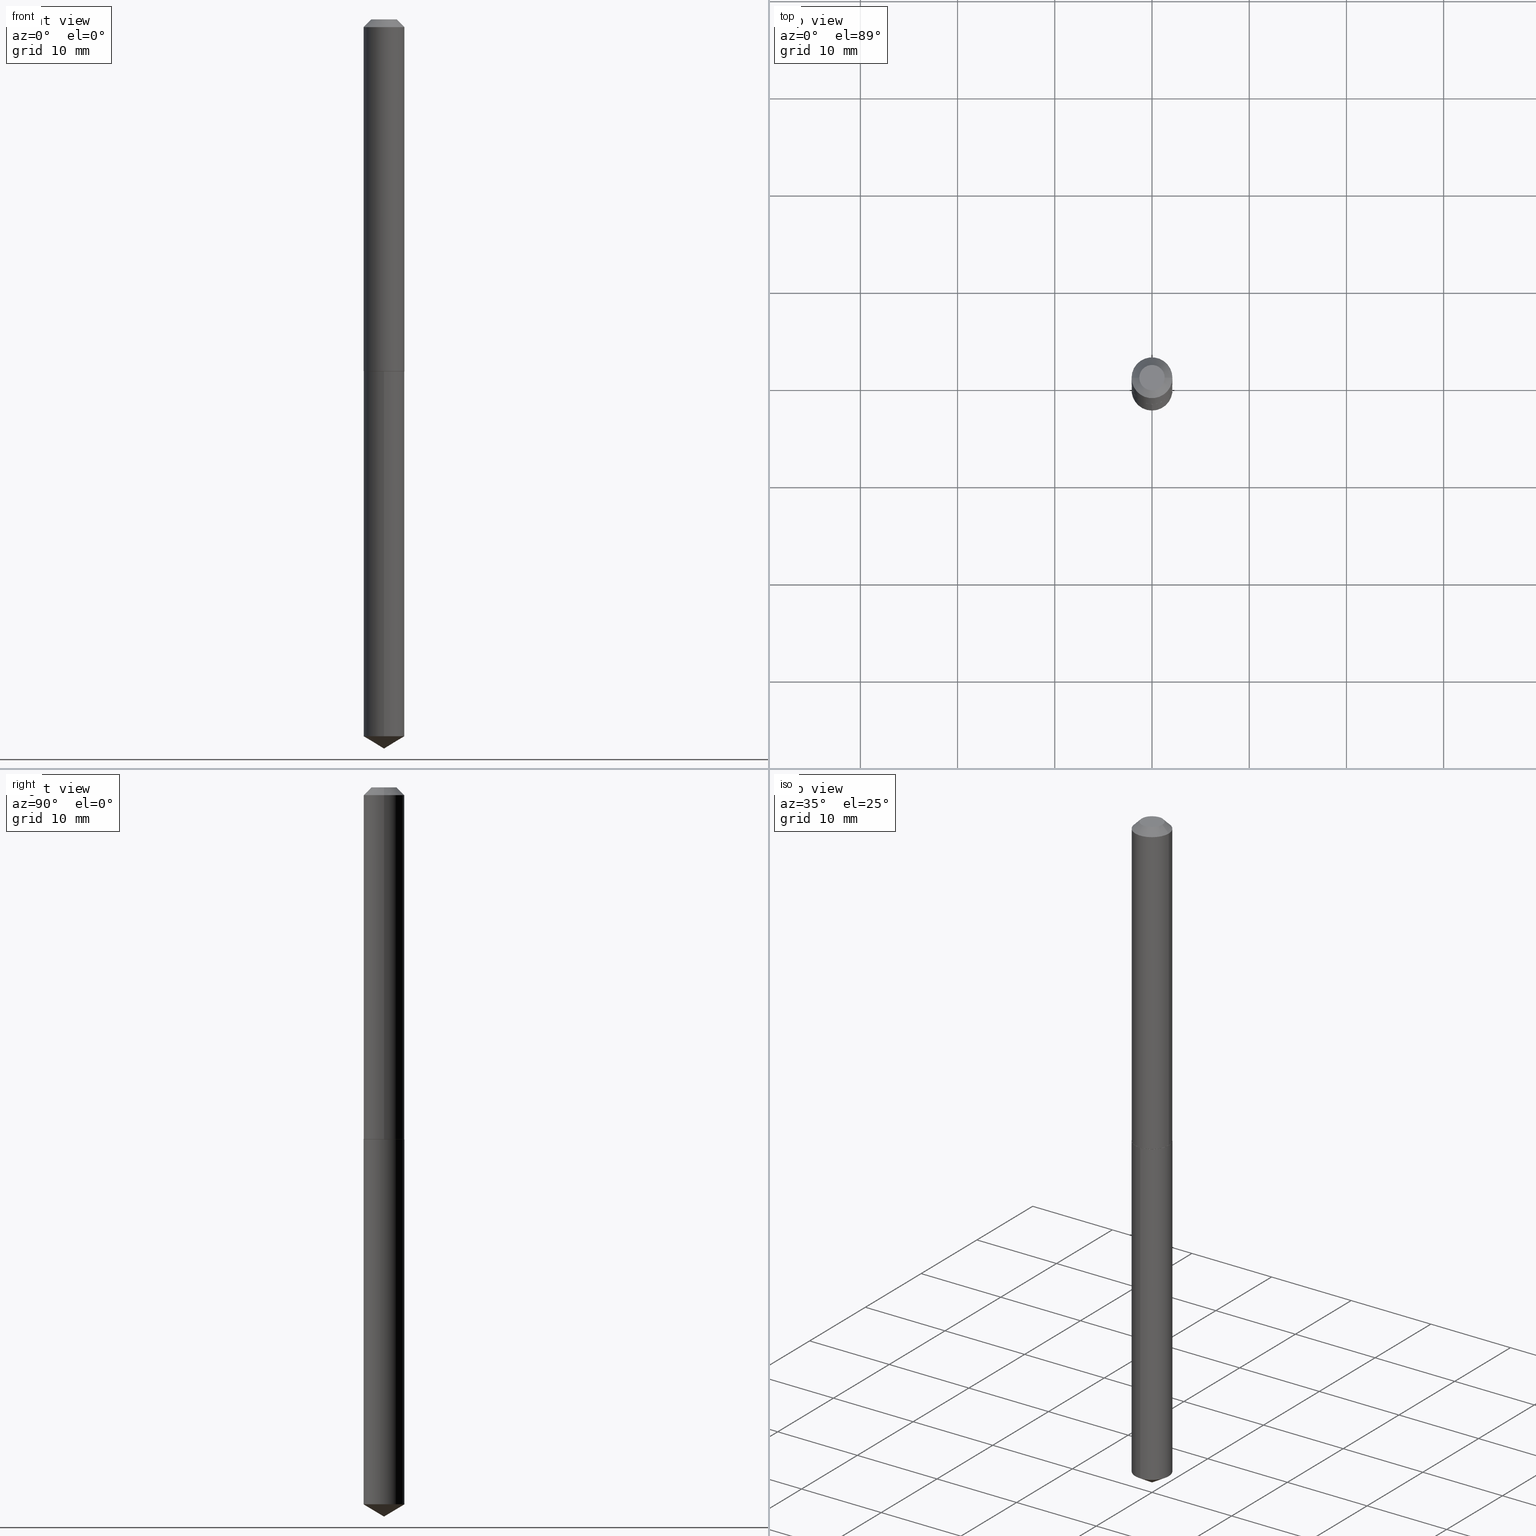
[diagram: canonical four-view strip — front | top / right | iso, engineering-drawing reading convention]
A machine part, canonical four-view strip (front | top / right | iso — engineering-drawing reading convention). The complete STEP part file that produces these views, byte-faithful:
ISO-10303-21;
HEADER;
FILE_DESCRIPTION (( 'STEP AP203' ),
    '1' );
FILE_NAME ('61077.STEP',
    '2024-04-23T03:20:12',
    ( '' ),
    ( '' ),
    'SwSTEP 2.0',
    'SolidWorks 2023',
    '' );
FILE_SCHEMA (( 'CONFIG_CONTROL_DESIGN' ));
ENDSEC;

DATA;
#1 = ADVANCED_BREP_SHAPE_REPRESENTATION ( '61077', ( #221, #100, #207 ), #72 ) ;
#2 = CARTESIAN_POINT ( 'NONE',  ( 3.484303955052581857E-29, -4.974662611583712996E-15, -1.424799999999999844 ) ) ;
#3 = AXIS2_PLACEMENT_3D ( 'NONE', #234, #151, #265 ) ;
#4 = APPROVAL ( #343, 'UNSPECIFIED' ) ;
#5 = DIRECTION ( 'NONE',  ( -2.445468806185136597E-29, 3.491481338843145583E-15, 1.000000000000000000 ) ) ;
#6 = DIRECTION ( 'NONE',  ( -2.445468806185136597E-29, 3.491481338843145583E-15, 1.000000000000000000 ) ) ;
#7 = LOCAL_TIME ( 23, 20, 12.00000000000000000, #81 ) ;
#8 = VERTEX_POINT ( 'NONE', #24 ) ;
#9 = EDGE_CURVE ( 'NONE', #344, #64, #22, .T. ) ;
#10 = FACE_OUTER_BOUND ( 'NONE', #188, .T. ) ;
#11 = CARTESIAN_POINT ( 'NONE',  ( 7.642090019328600035E-31, -1.091087918388489897E-16, -0.03125000000000020123 ) ) ;
#12 = ORIENTED_EDGE ( 'NONE', *, *, #332, .T. ) ;
#13 = APPROVAL_DATE_TIME ( #139, #124 ) ;
#14 = AXIS2_PLACEMENT_3D ( 'NONE', #227, #82, #199 ) ;
#15 = ORIENTED_EDGE ( 'NONE', *, *, #161, .T. ) ;
#16 = APPROVAL_PERSON_ORGANIZATION ( #46, #257, #107 ) ;
#17 = UNCERTAINTY_MEASURE_WITH_UNIT (LENGTH_MEASURE( 1.000000000000000082E-05 ), #333, 'distance_accuracy_value', 'NONE');
#18 = ADVANCED_FACE ( 'NONE', ( #84 ), #385, .T. ) ;
#19 = DATE_AND_TIME ( #49, #331 ) ;
#20 = LINE ( 'NONE', #348, #126 ) ;
#21 = PERSON_AND_ORGANIZATION ( #297, #127 ) ;
#22 = LINE ( 'NONE', #174, #325 ) ;
#23 = COORDINATED_UNIVERSAL_TIME_OFFSET ( 5, 0, .BEHIND. ) ;
#24 = CARTESIAN_POINT ( 'NONE',  ( 0.08220000000000014795, -5.550407884358946961E-15, -1.425299999999999789 ) ) ;
#25 = EDGE_CURVE ( 'NONE', #134, #344, #135, .T. ) ;
#26 = APPROVAL_STATUS ( 'not_yet_approved' ) ;
#27 = CARTESIAN_POINT ( 'NONE',  ( 3.484303955052581857E-29, -4.974662611583712996E-15, -1.424799999999999844 ) ) ;
#28 = FACE_OUTER_BOUND ( 'NONE', #157, .T. ) ;
#29 = AXIS2_PLACEMENT_3D ( 'NONE', #315, #50, #287 ) ;
#30 = ADVANCED_FACE ( 'NONE', ( #143 ), #262, .T. ) ;
#31 = LINE ( 'NONE', #149, #148 ) ;
#32 = DIMENSIONAL_EXPONENTS ( 1.000000000000000000, 0.000000000000000000, 0.000000000000000000, 0.000000000000000000, 0.000000000000000000, 0.000000000000000000, 0.000000000000000000 ) ;
#33 = DIRECTION ( 'NONE',  ( -1.000000000000000000, 6.982962677686267499E-15, 0.000000000000000000 ) ) ;
#34 = FACE_OUTER_BOUND ( 'NONE', #310, .T. ) ;
#35 = DIRECTION ( 'NONE',  ( -2.445501888859644537E-29, 3.491433962570301404E-15, 1.000000000000000000 ) ) ;
#36 = DIRECTION ( 'NONE',  ( -2.445468806185136597E-29, 3.491481338843145583E-15, 1.000000000000000000 ) ) ;
#37 = ORIENTED_EDGE ( 'NONE', *, *, #228, .T. ) ;
#38 = DIRECTION ( 'NONE',  ( -2.445468806185136597E-29, 3.491481338843145583E-15, 1.000000000000000000 ) ) ;
#39 = ORIENTED_EDGE ( 'NONE', *, *, #196, .T. ) ;
#40 = AXIS2_PLACEMENT_3D ( 'NONE', #229, #231, #284 ) ;
#41 = DIRECTION ( 'NONE',  ( -2.445468806185136597E-29, 3.491481338843145583E-15, 1.000000000000000000 ) ) ;
#42 = ORIENTED_EDGE ( 'NONE', *, *, #313, .F. ) ;
#43 = CARTESIAN_POINT ( 'NONE',  ( 0.08270000000000014839, -5.552153625028367676E-15, -1.424799999999999844 ) ) ;
#44 = EDGE_LOOP ( 'NONE', ( #146, #193, #270, #370 ) ) ;
#45 = ADVANCED_FACE ( 'NONE', ( #353 ), #354, .T. ) ;
#46 = PERSON_AND_ORGANIZATION ( #297, #127 ) ;
#47 = CIRCLE ( 'NONE', #78, 0.08269999999999999574 ) ;
#48 = CARTESIAN_POINT ( 'NONE',  ( -2.994835545909332737E-48, 4.275831445896982869E-34, 1.224646799147355792E-19 ) ) ;
#49 = CALENDAR_DATE ( 2024, 22, 4 ) ;
#50 = DIRECTION ( 'NONE',  ( -2.445501888859644537E-29, 3.491433962570301404E-15, 1.000000000000000000 ) ) ;
#51 = DIRECTION ( 'NONE',  ( -2.445468806185136877E-29, 3.491481338843145188E-15, 1.000000000000000000 ) ) ;
#52 = ORIENTED_EDGE ( 'NONE', *, *, #201, .F. ) ;
#53 = CIRCLE ( 'NONE', #97, 0.08269999999999999574 ) ;
#54 = CARTESIAN_POINT ( 'NONE',  ( 0.000000000000000000, 0.000000000000000000, 0.000000000000000000 ) ) ;
#55 = DIRECTION ( 'NONE',  ( -6.982962677686265922E-15, -1.000000000000000000, 6.606645692053841341E-15 ) ) ;
#56 = CARTESIAN_POINT ( 'NONE',  ( 0.08269999999999999574, -6.764719762545545521E-16, -0.03125000000000020123 ) ) ;
#57 = CIRCLE ( 'NONE', #14, 0.05144999999999999574 ) ;
#58 = CARTESIAN_POINT ( 'NONE',  ( 3.485526689455674098E-29, -4.976408352253134499E-15, -1.425299999999999789 ) ) ;
#59 = ADVANCED_FACE ( 'NONE', ( #170 ), #256, .T. ) ;
#60 = FACE_OUTER_BOUND ( 'NONE', #263, .T. ) ;
#61 = AXIS2_PLACEMENT_3D ( 'NONE', #293, #117, #33 ) ;
#62 = CONICAL_SURFACE ( 'NONE', #250, 0.08269999999999999574, 0.7853981633974450594 ) ;
#63 = CARTESIAN_POINT ( 'NONE',  ( 3.485526689455674098E-29, -4.976408352253134499E-15, -1.425299999999999789 ) ) ;
#64 = VERTEX_POINT ( 'NONE', #204 ) ;
#65 = EDGE_CURVE ( 'NONE', #241, #247, #20, .T. ) ;
#66 = LENGTH_MEASURE_WITH_UNIT ( LENGTH_MEASURE( 0.02539999999999999897 ), #339 );
#67 = ORIENTED_EDGE ( 'NONE', *, *, #357, .F. ) ;
#68 = DIRECTION ( 'NONE',  ( 1.000000000000000000, -6.982962677686267499E-15, 0.000000000000000000 ) ) ;
#69 = ORIENTED_EDGE ( 'NONE', *, *, #222, .T. ) ;
#70 = AXIS2_PLACEMENT_3D ( 'NONE', #48, #168, #350 ) ;
#71 = CARTESIAN_POINT ( 'NONE',  ( -0.08220000000000014795, -4.389692996284219796E-15, -1.425299999999999789 ) ) ;
#72 =( GEOMETRIC_REPRESENTATION_CONTEXT ( 3 ) GLOBAL_UNCERTAINTY_ASSIGNED_CONTEXT ( ( #17 ) ) GLOBAL_UNIT_ASSIGNED_CONTEXT ( ( #333, #306, #220 ) ) REPRESENTATION_CONTEXT ( 'NONE', 'WORKASPACE' ) );
#73 = ORIENTED_EDGE ( 'NONE', *, *, #132, .F. ) ;
#74 = VERTEX_POINT ( 'NONE', #114 ) ;
#75 = EDGE_CURVE ( 'NONE', #219, #307, #57, .T. ) ;
#76 = CALENDAR_DATE ( 2024, 22, 4 ) ;
#77 = DIRECTION ( 'NONE',  ( 1.000000000000000000, -6.982962677686267499E-15, 4.876176775795935793E-29 ) ) ;
#78 = AXIS2_PLACEMENT_3D ( 'NONE', #58, #35, #120 ) ;
#79 = ORIENTED_EDGE ( 'NONE', *, *, #65, .T. ) ;
#80 = LOCAL_TIME ( 23, 20, 12.00000000000000000, #376 ) ;
#81 = COORDINATED_UNIVERSAL_TIME_OFFSET ( 5, 0, .BEHIND. ) ;
#82 = DIRECTION ( 'NONE',  ( -2.445468806185136597E-29, 3.491481338843145583E-15, 1.000000000000000000 ) ) ;
#83 = PERSON_AND_ORGANIZATION ( #297, #127 ) ;
#84 = FACE_OUTER_BOUND ( 'NONE', #185, .T. ) ;
#85 = CALENDAR_DATE ( 2024, 22, 4 ) ;
#86 = DIRECTION ( 'NONE',  ( -6.982962677686265922E-15, -1.000000000000000000, 3.303322846026920670E-15 ) ) ;
#87 = VECTOR ( 'NONE', #183, 39.37007874015748143 ) ;
#88 = AXIS2_PLACEMENT_3D ( 'NONE', #11, #36, #155 ) ;
#89 = LINE ( 'NONE', #356, #264 ) ;
#90 = DIRECTION ( 'NONE',  ( -2.445468806185136877E-29, 3.491481338843145188E-15, 1.000000000000000000 ) ) ;
#91 = DIRECTION ( 'NONE',  ( 1.000000000000000000, -6.982962677686260400E-15, 0.000000000000000000 ) ) ;
#92 = CLOSED_SHELL ( 'NONE', ( #59, #145, #45, #30, #336 ) ) ;
#93 = CIRCLE ( 'NONE', #190, 0.05144999999999999574 ) ;
#94 = LINE ( 'NONE', #355, #217 ) ;
#95 = PRODUCT_DEFINITION_SHAPE ( 'NONE', 'NONE',  #242 ) ;
#96 = LINE ( 'NONE', #209, #87 ) ;
#97 = AXIS2_PLACEMENT_3D ( 'NONE', #208, #119, #322 ) ;
#98 = APPLICATION_CONTEXT ( 'configuration controlled 3d designs of mechanical parts and assemblies' ) ;
#99 = ORIENTED_EDGE ( 'NONE', *, *, #332, .F. ) ;
#100 = MANIFOLD_SOLID_BREP ( 'Body-Move/Copy2[2]', #281 ) ;
#101 = DIRECTION ( 'NONE',  ( -2.445468806185136597E-29, 3.491481338843145583E-15, 1.000000000000000000 ) ) ;
#102 = ORIENTED_EDGE ( 'NONE', *, *, #267, .F. ) ;
#103 = LINE ( 'NONE', #192, #153 ) ;
#104 = ORIENTED_EDGE ( 'NONE', *, *, #369, .F. ) ;
#105 = CC_DESIGN_PERSON_AND_ORGANIZATION_ASSIGNMENT ( #21, #320, ( #182 ) ) ;
#106 = DIRECTION ( 'NONE',  ( 1.000000000000000000, -6.982962677686265922E-15, 0.000000000000000000 ) ) ;
#107 = APPROVAL_ROLE ( '' ) ;
#108 = ORIENTED_EDGE ( 'NONE', *, *, #369, .T. ) ;
#109 = APPROVAL_ROLE ( '' ) ;
#110 = DIRECTION ( 'NONE',  ( -2.445501888859644537E-29, 3.491433962570301404E-15, 1.000000000000000000 ) ) ;
#111 = APPROVAL_DATE_TIME ( #19, #257 ) ;
#112 = ORIENTED_EDGE ( 'NONE', *, *, #378, .T. ) ;
#113 = ADVANCED_FACE ( 'NONE', ( #316 ), #342, .F. ) ;
#114 = CARTESIAN_POINT ( 'NONE',  ( -0.08269999999999999574, -1.954266859237676647E-15, -0.03125000000000020123 ) ) ;
#115 = CONICAL_SURFACE ( 'NONE', #387, 65.52281426576989531, 1.029744258676664304 ) ;
#116 = CC_DESIGN_APPROVAL ( #124, ( #242 ) ) ;
#117 = DIRECTION ( 'NONE',  ( 2.445468806185136597E-29, -3.491481338843145583E-15, -1.000000000000000000 ) ) ;
#118 = APPLICATION_CONTEXT ( 'configuration controlled 3d designs of mechanical parts and assemblies' ) ;
#119 = DIRECTION ( 'NONE',  ( -2.445501888859644537E-29, 3.491433962570301404E-15, 1.000000000000000000 ) ) ;
#120 = DIRECTION ( 'NONE',  ( -6.982962677686265922E-15, -1.000000000000000000, 3.303322846026920670E-15 ) ) ;
#121 = CONICAL_SURFACE ( 'NONE', #312, 0.08270000000000014839, 0.7853981633975507526 ) ;
#122 = DIRECTION ( 'NONE',  ( -1.000000000000000000, 6.982962677686267499E-15, 0.000000000000000000 ) ) ;
#123 = FACE_OUTER_BOUND ( 'NONE', #290, .T. ) ;
#124 = APPROVAL ( #26, 'UNSPECIFIED' ) ;
#125 = ORIENTED_EDGE ( 'NONE', *, *, #65, .F. ) ;
#126 = VECTOR ( 'NONE', #260, 39.37007874015748143 ) ;
#127 = ORGANIZATION ( 'UNSPECIFIED', 'UNSPECIFIED', '' ) ;
#128 = FACE_OUTER_BOUND ( 'NONE', #44, .T. ) ;
#129 = ORIENTED_EDGE ( 'NONE', *, *, #75, .F. ) ;
#130 = CARTESIAN_POINT ( 'NONE',  ( 7.221077977424758204E-29, -1.030950620467758353E-14, -2.952799999999999869 ) ) ;
#131 = EDGE_LOOP ( 'NONE', ( #280, #37, #52, #125 ) ) ;
#132 = EDGE_CURVE ( 'NONE', #377, #241, #329, .T. ) ;
#133 = CARTESIAN_POINT ( 'NONE',  ( 5.876188424736740181E-16, 0.08269999999999502749, -1.425300000000000011 ) ) ;
#134 = VERTEX_POINT ( 'NONE', #177 ) ;
#135 = CIRCLE ( 'NONE', #305, 0.08270000000000014839 ) ;
#136 = CC_DESIGN_SECURITY_CLASSIFICATION ( #182, ( #381 ) ) ;
#137 = DIRECTION ( 'NONE',  ( 0.000000000000000000, 0.000000000000000000, 1.000000000000000000 ) ) ;
#138 = ORIENTED_EDGE ( 'NONE', *, *, #296, .F. ) ;
#139 = DATE_AND_TIME ( #76, #7 ) ;
#140 = ADVANCED_FACE ( 'NONE', ( #233 ), #189, .T. ) ;
#141 = CARTESIAN_POINT ( 'NONE',  ( 0.000000000000000000, 0.000000000000000000, 0.000000000000000000 ) ) ;
#142 = AXIS2_PLACEMENT_3D ( 'NONE', #299, #327, #55 ) ;
#143 = FACE_OUTER_BOUND ( 'NONE', #276, .T. ) ;
#144 = DIRECTION ( 'NONE',  ( 1.000000000000000000, -6.982962677686260400E-15, 0.000000000000000000 ) ) ;
#145 = ADVANCED_FACE ( 'NONE', ( #34 ), #115, .T. ) ;
#146 = ORIENTED_EDGE ( 'NONE', *, *, #235, .F. ) ;
#147 = CARTESIAN_POINT ( 'NONE',  ( 3.484303955052581857E-29, -4.974662611583712996E-15, -1.424799999999999844 ) ) ;
#148 = VECTOR ( 'NONE', #266, 39.37007874015748143 ) ;
#149 = CARTESIAN_POINT ( 'NONE',  ( 7.220983671952805250E-29, -1.030964125548095409E-14, -2.952799999999999869 ) ) ;
#150 = ADVANCED_FACE ( 'NONE', ( #60 ), #273, .T. ) ;
#151 = DIRECTION ( 'NONE',  ( -2.445468806185136597E-29, 3.491481338843145583E-15, 1.000000000000000000 ) ) ;
#152 = DIRECTION ( 'NONE',  ( -2.445468806185136597E-29, 3.491481338843145583E-15, 1.000000000000000000 ) ) ;
#153 = VECTOR ( 'NONE', #309, 39.37007874015748854 ) ;
#154 = ADVANCED_FACE ( 'NONE', ( #28 ), #121, .T. ) ;
#155 = DIRECTION ( 'NONE',  ( 1.000000000000000000, -6.982962677686267499E-15, 0.000000000000000000 ) ) ;
#156 = ORIENTED_EDGE ( 'NONE', *, *, #285, .F. ) ;
#157 = EDGE_LOOP ( 'NONE', ( #253, #160, #176, #255 ) ) ;
#158 = AXIS2_PLACEMENT_3D ( 'NONE', #159, #213, #334 ) ;
#159 = CARTESIAN_POINT ( 'NONE',  ( 3.485526689455674098E-29, -4.976408352253134499E-15, -1.425299999999999789 ) ) ;
#160 = ORIENTED_EDGE ( 'NONE', *, *, #383, .T. ) ;
#161 = EDGE_CURVE ( 'NONE', #134, #74, #326, .T. ) ;
#162 = DIRECTION ( 'NONE',  ( -2.438088387897960049E-29, 3.491481338843145188E-15, 1.000000000000000000 ) ) ;
#163 = ORIENTED_EDGE ( 'NONE', *, *, #383, .F. ) ;
#164 = DIRECTION ( 'NONE',  ( 1.000000000000000000, -6.982962677686260400E-15, 0.000000000000000000 ) ) ;
#165 = ORIENTED_EDGE ( 'NONE', *, *, #235, .T. ) ;
#166 = CC_DESIGN_APPROVAL ( #257, ( #182 ) ) ;
#167 = DATE_AND_TIME ( #317, #258 ) ;
#168 = DIRECTION ( 'NONE',  ( 2.438088387897960049E-29, -3.491481338843145188E-15, -1.000000000000000000 ) ) ;
#169 = PERSON_AND_ORGANIZATION ( #297, #127 ) ;
#170 = FACE_OUTER_BOUND ( 'NONE', #131, .T. ) ;
#171 = ORIENTED_EDGE ( 'NONE', *, *, #196, .F. ) ;
#172 = PERSON_AND_ORGANIZATION ( #297, #127 ) ;
#173 = VECTOR ( 'NONE', #90, 39.37007874015748143 ) ;
#174 = CARTESIAN_POINT ( 'NONE',  ( 0.08270000000000007900, -5.774910134446548770E-16, 4.032598193583242774E-30 ) ) ;
#175 = CC_DESIGN_DATE_AND_TIME_ASSIGNMENT ( #289, #202, ( #242 ) ) ;
#176 = ORIENTED_EDGE ( 'NONE', *, *, #313, .T. ) ;
#177 = CARTESIAN_POINT ( 'NONE',  ( -0.08270000000000014839, -4.387043769110109384E-15, -1.424799999999999844 ) ) ;
#178 = CC_DESIGN_PERSON_AND_ORGANIZATION_ASSIGNMENT ( #172, #200, ( #242 ) ) ;
#179 = DIRECTION ( 'NONE',  ( 0.7071067811865452413, -7.319954787623248157E-15, -0.7071067811865497932 ) ) ;
#180 = DIRECTION ( 'NONE',  ( -0.7071067811866199593, 7.493145998870616062E-15, 0.7071067811864750752 ) ) ;
#181 = DIRECTION ( 'NONE',  ( 1.000000000000000000, -6.982962677686260400E-15, 0.000000000000000000 ) ) ;
#182 = SECURITY_CLASSIFICATION ( '', '', #198 ) ;
#183 = DIRECTION ( 'NONE',  ( 0.7071067811866199593, -2.468850131083015945E-15, 0.7071067811864750752 ) ) ;
#184 = ORIENTED_EDGE ( 'NONE', *, *, #296, .T. ) ;
#185 = EDGE_LOOP ( 'NONE', ( #338, #216, #366, #311 ) ) ;
#186 = PRODUCT_RELATED_PRODUCT_CATEGORY ( 'detail', '', ( #268 ) ) ;
#187 = CARTESIAN_POINT ( 'NONE',  ( -5.989671091818665474E-48, 8.551662891793965739E-34, 2.449293598294711584E-19 ) ) ;
#188 = EDGE_LOOP ( 'NONE', ( #214, #12 ) ) ;
#189 = CONICAL_SURFACE ( 'NONE', #288, 0.08270000000000014839, 0.7853981633975507526 ) ;
#190 = AXIS2_PLACEMENT_3D ( 'NONE', #187, #38, #269 ) ;
#191 = ORIENTED_EDGE ( 'NONE', *, *, #267, .T. ) ;
#192 = CARTESIAN_POINT ( 'NONE',  ( 7.221078804372427926E-29, -1.030950620467758353E-14, -2.952799999999999869 ) ) ;
#193 = ORIENTED_EDGE ( 'NONE', *, *, #378, .F. ) ;
#194 = PERSON_AND_ORGANIZATION ( #297, #127 ) ;
#195 = DIRECTION ( 'NONE',  ( -2.445468806185136597E-29, 3.491481338843145583E-15, 1.000000000000000000 ) ) ;
#196 = EDGE_CURVE ( 'NONE', #8, #386, #210, .T. ) ;
#197 = DATE_AND_TIME ( #223, #346 ) ;
#198 = SECURITY_CLASSIFICATION_LEVEL ( 'unclassified' ) ;
#199 = DIRECTION ( 'NONE',  ( 1.000000000000000000, -6.982962677686266711E-15, 4.876185480783892329E-29 ) ) ;
#200 = PERSON_AND_ORGANIZATION_ROLE ( 'creator' ) ;
#201 = EDGE_CURVE ( 'NONE', #247, #291, #47, .T. ) ;
#202 = DATE_TIME_ROLE ( 'creation_date' ) ;
#203 = CIRCLE ( 'NONE', #373, 0.08269999999999999574 ) ;
#204 = CARTESIAN_POINT ( 'NONE',  ( 0.08269999999999999574, -6.865998052835032874E-16, -0.03125000000000020123 ) ) ;
#205 = DIRECTION ( 'NONE',  ( -2.445501888859644537E-29, 3.491433962570301404E-15, 1.000000000000000000 ) ) ;
#206 = DIRECTION ( 'NONE',  ( -6.982962677686266711E-15, -1.000000000000000000, 3.468864327941516906E-15 ) ) ;
#207 = AXIS2_PLACEMENT_3D ( 'NONE', #54, #137, #347 ) ;
#208 = CARTESIAN_POINT ( 'NONE',  ( 7.099510966784234731E-29, -1.013608028035124857E-14, -2.903108826806421572 ) ) ;
#209 = CARTESIAN_POINT ( 'NONE',  ( 0.08270000000000014839, -5.552153625028367676E-15, -1.424799999999999844 ) ) ;
#210 = CIRCLE ( 'NONE', #3, 0.08220000000000014795 ) ;
#211 = CIRCLE ( 'NONE', #274, 0.08220000000000014795 ) ;
#212 = CC_DESIGN_PERSON_AND_ORGANIZATION_ASSIGNMENT ( #194, #261, ( #381 ) ) ;
#213 = DIRECTION ( 'NONE',  ( -2.445501888859644537E-29, 3.491433962570301404E-15, 1.000000000000000000 ) ) ;
#214 = ORIENTED_EDGE ( 'NONE', *, *, #201, .T. ) ;
#215 = DIRECTION ( 'NONE',  ( 2.445501888859644257E-29, -3.491433962570301404E-15, -1.000000000000000000 ) ) ;
#216 = ORIENTED_EDGE ( 'NONE', *, *, #25, .T. ) ;
#217 = VECTOR ( 'NONE', #180, 39.37007874015748143 ) ;
#218 = CYLINDRICAL_SURFACE ( 'NONE', #225, 0.08270000000000007900 ) ;
#219 = VERTEX_POINT ( 'NONE', #360 ) ;
#220 =( NAMED_UNIT ( * ) SI_UNIT ( $, .STERADIAN. ) SOLID_ANGLE_UNIT ( ) );
#221 = MANIFOLD_SOLID_BREP ( 'Body-Move/Copy2[1]', #92 ) ;
#222 = EDGE_CURVE ( 'NONE', #386, #134, #94, .T. ) ;
#223 = CALENDAR_DATE ( 2024, 22, 4 ) ;
#224 = ORIENTED_EDGE ( 'NONE', *, *, #9, .F. ) ;
#225 = AXIS2_PLACEMENT_3D ( 'NONE', #240, #41, #365 ) ;
#226 = APPROVAL_ROLE ( '' ) ;
#227 = CARTESIAN_POINT ( 'NONE',  ( -5.989671091818665474E-48, 8.551662891793965739E-34, 2.449293598294711584E-19 ) ) ;
#228 = EDGE_CURVE ( 'NONE', #377, #291, #89, .T. ) ;
#229 = CARTESIAN_POINT ( 'NONE',  ( 3.485526689455674098E-29, -4.976408352253134499E-15, -1.425299999999999789 ) ) ;
#230 = APPLICATION_PROTOCOL_DEFINITION ( 'international standard', 'config_control_design', 1994, #98 ) ;
#231 = DIRECTION ( 'NONE',  ( -2.445501888859644537E-29, 3.491433962570301404E-15, 1.000000000000000000 ) ) ;
#232 = APPROVAL_PERSON_ORGANIZATION ( #351, #124, #109 ) ;
#233 = FACE_OUTER_BOUND ( 'NONE', #245, .T. ) ;
#234 = CARTESIAN_POINT ( 'NONE',  ( 3.485526689455674098E-29, -4.976408352253134499E-15, -1.425299999999999789 ) ) ;
#235 = EDGE_CURVE ( 'NONE', #219, #64, #323, .T. ) ;
#236 = CARTESIAN_POINT ( 'NONE',  ( -0.08270000000000007900, 5.876188424736034151E-16, -4.067959319640811108E-30 ) ) ;
#237 = CIRCLE ( 'NONE', #388, 0.08270000000000014839 ) ;
#238 = EDGE_CURVE ( 'NONE', #241, #377, #53, .T. ) ;
#239 = DIRECTION ( 'NONE',  ( 6.982962677686265922E-15, 1.000000000000000000, -3.491433962570301404E-15 ) ) ;
#240 = CARTESIAN_POINT ( 'NONE',  ( 0.000000000000000000, 0.000000000000000000, 0.000000000000000000 ) ) ;
#241 = VERTEX_POINT ( 'NONE', #298 ) ;
#242 = PRODUCT_DEFINITION ( 'UNKNOWN', '', #381, #328 ) ;
#243 = VECTOR ( 'NONE', #179, 39.37007874015748143 ) ;
#244 = CARTESIAN_POINT ( 'NONE',  ( -0.08269999999999999574, 4.683822216058052833E-16, -0.03125000000000020123 ) ) ;
#245 = EDGE_LOOP ( 'NONE', ( #39, #69, #67, #42 ) ) ;
#246 = LINE ( 'NONE', #244, #319 ) ;
#247 = VERTEX_POINT ( 'NONE', #295 ) ;
#248 = CARTESIAN_POINT ( 'NONE',  ( 7.642090019328600035E-31, -1.091087918388489897E-16, -0.03125000000000020123 ) ) ;
#249 = ORIENTED_EDGE ( 'NONE', *, *, #228, .F. ) ;
#250 = AXIS2_PLACEMENT_3D ( 'NONE', #301, #277, #122 ) ;
#251 = AXIS2_PLACEMENT_3D ( 'NONE', #271, #215, #239 ) ;
#252 = APPROVAL_STATUS ( 'not_yet_approved' ) ;
#253 = ORIENTED_EDGE ( 'NONE', *, *, #222, .F. ) ;
#254 = SHAPE_DEFINITION_REPRESENTATION ( #95, #1 ) ;
#255 = ORIENTED_EDGE ( 'NONE', *, *, #25, .F. ) ;
#256 = CYLINDRICAL_SURFACE ( 'NONE', #372, 0.08269999999999999574 ) ;
#257 = APPROVAL ( #252, 'UNSPECIFIED' ) ;
#258 = LOCAL_TIME ( 23, 20, 12.00000000000000000, #23 ) ;
#259 = PERSON_AND_ORGANIZATION ( #297, #127 ) ;
#260 = DIRECTION ( 'NONE',  ( -2.445501888859644537E-29, 3.491433962570301404E-15, 1.000000000000000000 ) ) ;
#261 = PERSON_AND_ORGANIZATION_ROLE ( 'creator' ) ;
#262 = CYLINDRICAL_SURFACE ( 'NONE', #40, 0.08269999999999999574 ) ;
#263 = EDGE_LOOP ( 'NONE', ( #129, #165, #108, #156 ) ) ;
#264 = VECTOR ( 'NONE', #205, 39.37007874015748143 ) ;
#265 = DIRECTION ( 'NONE',  ( 1.000000000000000000, -6.982962677686265922E-15, 0.000000000000000000 ) ) ;
#266 = DIRECTION ( 'NONE',  ( -5.985567269335978356E-15, -0.8571673007021155533, 0.5150380749100487154 ) ) ;
#267 = EDGE_CURVE ( 'NONE', #278, #241, #31, .T. ) ;
#268 = PRODUCT ( '61077', '61077', '', ( #379 ) ) ;
#269 = DIRECTION ( 'NONE',  ( 1.000000000000000000, -6.982962677686266711E-15, 4.876185480783892329E-29 ) ) ;
#270 = ORIENTED_EDGE ( 'NONE', *, *, #285, .T. ) ;
#271 = CARTESIAN_POINT ( 'NONE',  ( 3.485526689455674098E-29, -4.976408352253134499E-15, -1.425299999999999789 ) ) ;
#272 = ORIENTED_EDGE ( 'NONE', *, *, #132, .T. ) ;
#273 = CONICAL_SURFACE ( 'NONE', #61, 0.08269999999999999574, 0.7853981633974450594 ) ;
#274 = AXIS2_PLACEMENT_3D ( 'NONE', #362, #5, #106 ) ;
#275 = DIRECTION ( 'NONE',  ( 1.000000000000000000, -6.982962677686265922E-15, 4.876176775795935793E-29 ) ) ;
#276 = EDGE_LOOP ( 'NONE', ( #249, #272, #79, #99 ) ) ;
#277 = DIRECTION ( 'NONE',  ( 2.445468806185136597E-29, -3.491481338843145583E-15, -1.000000000000000000 ) ) ;
#278 = VERTEX_POINT ( 'NONE', #130 ) ;
#279 = CARTESIAN_POINT ( 'NONE',  ( 5.876188424736738209E-16, 0.08269999999998987883, -2.903108826806422016 ) ) ;
#280 = ORIENTED_EDGE ( 'NONE', *, *, #238, .T. ) ;
#281 = CLOSED_SHELL ( 'NONE', ( #150, #390, #140, #292, #154, #18, #363, #113 ) ) ;
#282 = CIRCLE ( 'NONE', #88, 0.08269999999999999574 ) ;
#283 = COORDINATED_UNIVERSAL_TIME_OFFSET ( 5, 0, .BEHIND. ) ;
#284 = DIRECTION ( 'NONE',  ( -6.982962677686265922E-15, -1.000000000000000000, 3.303322846026920670E-15 ) ) ;
#285 = EDGE_CURVE ( 'NONE', #307, #74, #246, .T. ) ;
#286 = APPROVAL_DATE_TIME ( #197, #4 ) ;
#287 = DIRECTION ( 'NONE',  ( -6.982962677686266711E-15, -1.000000000000000000, 3.468864327941516906E-15 ) ) ;
#288 = AXIS2_PLACEMENT_3D ( 'NONE', #2, #358, #91 ) ;
#289 = DATE_AND_TIME ( #85, #80 ) ;
#290 = EDGE_LOOP ( 'NONE', ( #368, #15, #104, #224 ) ) ;
#291 = VERTEX_POINT ( 'NONE', #133 ) ;
#292 = ADVANCED_FACE ( 'NONE', ( #302 ), #330, .F. ) ;
#293 = CARTESIAN_POINT ( 'NONE',  ( 7.642090019328600035E-31, -1.091087918388489897E-16, -0.03125000000000020123 ) ) ;
#294 = AXIS2_PLACEMENT_3D ( 'NONE', #63, #162, #275 ) ;
#295 = CARTESIAN_POINT ( 'NONE',  ( -5.774910134446193783E-16, -0.08270000000000496398, -1.425299999999999345 ) ) ;
#296 = EDGE_CURVE ( 'NONE', #278, #377, #103, .T. ) ;
#297 = PERSON ( 'UNSPECIFIED', 'UNSPECIFIED', 'UNSPECIFIED', ('UNSPECIFIED'), ('UNSPECIFIED'), ('UNSPECIFIED') ) ;
#298 = CARTESIAN_POINT ( 'NONE',  ( -5.774910134445832879E-16, -0.08270000000001015428, -2.903108826806421128 ) ) ;
#299 = CARTESIAN_POINT ( 'NONE',  ( 7.099510966784234731E-29, -1.013608028035124857E-14, -2.903108826806421572 ) ) ;
#300 = CC_DESIGN_APPROVAL ( #4, ( #381 ) ) ;
#301 = CARTESIAN_POINT ( 'NONE',  ( 7.642090019328600035E-31, -1.091087918388489897E-16, -0.03125000000000020123 ) ) ;
#302 = FACE_OUTER_BOUND ( 'NONE', #304, .T. ) ;
#303 = CARTESIAN_POINT ( 'NONE',  ( -0.05144999999999999574, 4.138278256863818177E-16, 2.449293598267681157E-19 ) ) ;
#304 = EDGE_LOOP ( 'NONE', ( #171, #163 ) ) ;
#305 = AXIS2_PLACEMENT_3D ( 'NONE', #27, #195, #144 ) ;
#306 =( NAMED_UNIT ( * ) PLANE_ANGLE_UNIT ( ) SI_UNIT ( $, .RADIAN. ) );
#307 = VERTEX_POINT ( 'NONE', #303 ) ;
#308 = EDGE_CURVE ( 'NONE', #74, #64, #203, .T. ) ;
#309 = DIRECTION ( 'NONE',  ( 6.090539988449815512E-15, 0.8571673007021192170, 0.5150380749100427202 ) ) ;
#310 = EDGE_LOOP ( 'NONE', ( #102, #184, #335 ) ) ;
#311 = ORIENTED_EDGE ( 'NONE', *, *, #308, .F. ) ;
#312 = AXIS2_PLACEMENT_3D ( 'NONE', #147, #152, #181 ) ;
#313 = EDGE_CURVE ( 'NONE', #8, #344, #96, .T. ) ;
#314 = DATE_TIME_ROLE ( 'classification_date' ) ;
#315 = CARTESIAN_POINT ( 'NONE',  ( -8.905857109891926856E-28, 1.271484562923735546E-13, 36.41727874015747801 ) ) ;
#316 = FACE_OUTER_BOUND ( 'NONE', #340, .T. ) ;
#317 = CALENDAR_DATE ( 2024, 22, 4 ) ;
#318 = ORIENTED_EDGE ( 'NONE', *, *, #75, .T. ) ;
#319 = VECTOR ( 'NONE', #367, 39.37007874015748143 ) ;
#320 = PERSON_AND_ORGANIZATION_ROLE ( 'classification_officer' ) ;
#321 = CC_DESIGN_PERSON_AND_ORGANIZATION_ASSIGNMENT ( #169, #341, ( #268 ) ) ;
#322 = DIRECTION ( 'NONE',  ( -6.982962677686265922E-15, -1.000000000000000000, 6.606645692053841341E-15 ) ) ;
#323 = LINE ( 'NONE', #56, #243 ) ;
#324 = CC_DESIGN_DATE_AND_TIME_ASSIGNMENT ( #167, #314, ( #182 ) ) ;
#325 = VECTOR ( 'NONE', #51, 39.37007874015748143 ) ;
#326 = LINE ( 'NONE', #236, #173 ) ;
#327 = DIRECTION ( 'NONE',  ( -2.445501888859644537E-29, 3.491433962570301404E-15, 1.000000000000000000 ) ) ;
#328 = DESIGN_CONTEXT ( 'detailed design', #118, 'design' ) ;
#329 = CIRCLE ( 'NONE', #142, 0.08269999999999999574 ) ;
#330 = PLANE ( 'NONE',  #294 ) ;
#331 = LOCAL_TIME ( 23, 20, 12.00000000000000000, #283 ) ;
#332 = EDGE_CURVE ( 'NONE', #291, #247, #345, .T. ) ;
#333 =( CONVERSION_BASED_UNIT ( 'INCH', #66 ) LENGTH_UNIT ( ) NAMED_UNIT ( #32 ) );
#334 = DIRECTION ( 'NONE',  ( -6.982962677686265922E-15, -1.000000000000000000, 3.303322846026920670E-15 ) ) ;
#335 = ORIENTED_EDGE ( 'NONE', *, *, #238, .F. ) ;
#336 = ADVANCED_FACE ( 'NONE', ( #10 ), #371, .F. ) ;
#337 = CARTESIAN_POINT ( 'NONE',  ( 3.484303955052581857E-29, -4.974662611583712996E-15, -1.424799999999999844 ) ) ;
#338 = ORIENTED_EDGE ( 'NONE', *, *, #161, .F. ) ;
#339 =( LENGTH_UNIT ( ) NAMED_UNIT ( * ) SI_UNIT ( $, .METRE. ) );
#340 = EDGE_LOOP ( 'NONE', ( #112, #318 ) ) ;
#341 = PERSON_AND_ORGANIZATION_ROLE ( 'design_owner' ) ;
#342 = PLANE ( 'NONE',  #70 ) ;
#343 = APPROVAL_STATUS ( 'not_yet_approved' ) ;
#344 = VERTEX_POINT ( 'NONE', #43 ) ;
#345 = CIRCLE ( 'NONE', #158, 0.08269999999999999574 ) ;
#346 = LOCAL_TIME ( 23, 20, 12.00000000000000000, #349 ) ;
#347 = DIRECTION ( 'NONE',  ( 1.000000000000000000, 0.000000000000000000, 0.000000000000000000 ) ) ;
#348 = CARTESIAN_POINT ( 'NONE',  ( -5.774910134446193783E-16, -0.08270000000000496398, -1.425299999999999345 ) ) ;
#349 = COORDINATED_UNIVERSAL_TIME_OFFSET ( 5, 0, .BEHIND. ) ;
#350 = DIRECTION ( 'NONE',  ( -1.000000000000000000, 6.982962677686265922E-15, -4.876176775795935793E-29 ) ) ;
#351 = PERSON_AND_ORGANIZATION ( #297, #127 ) ;
#352 = CC_DESIGN_PERSON_AND_ORGANIZATION_ASSIGNMENT ( #259, #384, ( #381 ) ) ;
#353 = FACE_OUTER_BOUND ( 'NONE', #375, .T. ) ;
#354 = CONICAL_SURFACE ( 'NONE', #29, 65.52281426576989531, 1.029744258676664304 ) ;
#355 = CARTESIAN_POINT ( 'NONE',  ( -0.08270000000000014839, -4.387043769110109384E-15, -1.424799999999999844 ) ) ;
#356 = CARTESIAN_POINT ( 'NONE',  ( 5.876188424736375333E-16, 0.08269999999999502749, -1.425300000000000011 ) ) ;
#357 = EDGE_CURVE ( 'NONE', #344, #134, #237, .T. ) ;
#358 = DIRECTION ( 'NONE',  ( -2.445468806185136597E-29, 3.491481338843145583E-15, 1.000000000000000000 ) ) ;
#359 = APPROVAL_PERSON_ORGANIZATION ( #83, #4, #226 ) ;
#360 = CARTESIAN_POINT ( 'NONE',  ( 0.05144999999999999574, -5.147222991199499197E-16, 2.449293598325265018E-19 ) ) ;
#361 = DIRECTION ( 'NONE',  ( -2.445501888859644537E-29, 3.491433962570301404E-15, 1.000000000000000000 ) ) ;
#362 = CARTESIAN_POINT ( 'NONE',  ( 3.485526689455674098E-29, -4.976408352253134499E-15, -1.425299999999999789 ) ) ;
#363 = ADVANCED_FACE ( 'NONE', ( #128 ), #62, .T. ) ;
#364 = AXIS2_PLACEMENT_3D ( 'NONE', #141, #382, #77 ) ;
#365 = DIRECTION ( 'NONE',  ( 1.000000000000000000, -6.982962677686267499E-15, 4.876176775795935793E-29 ) ) ;
#366 = ORIENTED_EDGE ( 'NONE', *, *, #9, .T. ) ;
#367 = DIRECTION ( 'NONE',  ( -0.7071067811865452413, 2.468850131082233000E-15, -0.7071067811865497932 ) ) ;
#368 = ORIENTED_EDGE ( 'NONE', *, *, #357, .T. ) ;
#369 = EDGE_CURVE ( 'NONE', #64, #74, #282, .T. ) ;
#370 = ORIENTED_EDGE ( 'NONE', *, *, #308, .T. ) ;
#371 = PLANE ( 'NONE',  #251 ) ;
#372 = AXIS2_PLACEMENT_3D ( 'NONE', #380, #110, #86 ) ;
#373 = AXIS2_PLACEMENT_3D ( 'NONE', #248, #101, #68 ) ;
#374 = APPLICATION_PROTOCOL_DEFINITION ( 'international standard', 'config_control_design', 1994, #118 ) ;
#375 = EDGE_LOOP ( 'NONE', ( #138, #191, #73 ) ) ;
#376 = COORDINATED_UNIVERSAL_TIME_OFFSET ( 5, 0, .BEHIND. ) ;
#377 = VERTEX_POINT ( 'NONE', #279 ) ;
#378 = EDGE_CURVE ( 'NONE', #307, #219, #93, .T. ) ;
#379 = MECHANICAL_CONTEXT ( 'NONE', #98, 'mechanical' ) ;
#380 = CARTESIAN_POINT ( 'NONE',  ( 3.485526689455674098E-29, -4.976408352253134499E-15, -1.425299999999999789 ) ) ;
#381 = PRODUCT_DEFINITION_FORMATION_WITH_SPECIFIED_SOURCE ( 'ANY', '', #268, .NOT_KNOWN. ) ;
#382 = DIRECTION ( 'NONE',  ( -2.445468806185136597E-29, 3.491481338843145583E-15, 1.000000000000000000 ) ) ;
#383 = EDGE_CURVE ( 'NONE', #386, #8, #211, .T. ) ;
#384 = PERSON_AND_ORGANIZATION_ROLE ( 'design_supplier' ) ;
#385 = CYLINDRICAL_SURFACE ( 'NONE', #364, 0.08270000000000007900 ) ;
#386 = VERTEX_POINT ( 'NONE', #71 ) ;
#387 = AXIS2_PLACEMENT_3D ( 'NONE', #389, #361, #206 ) ;
#388 = AXIS2_PLACEMENT_3D ( 'NONE', #337, #6, #164 ) ;
#389 = CARTESIAN_POINT ( 'NONE',  ( -8.905857109891926856E-28, 1.271484562923735546E-13, 36.41727874015747801 ) ) ;
#390 = ADVANCED_FACE ( 'NONE', ( #123 ), #218, .T. ) ;
ENDSEC;
END-ISO-10303-21;
